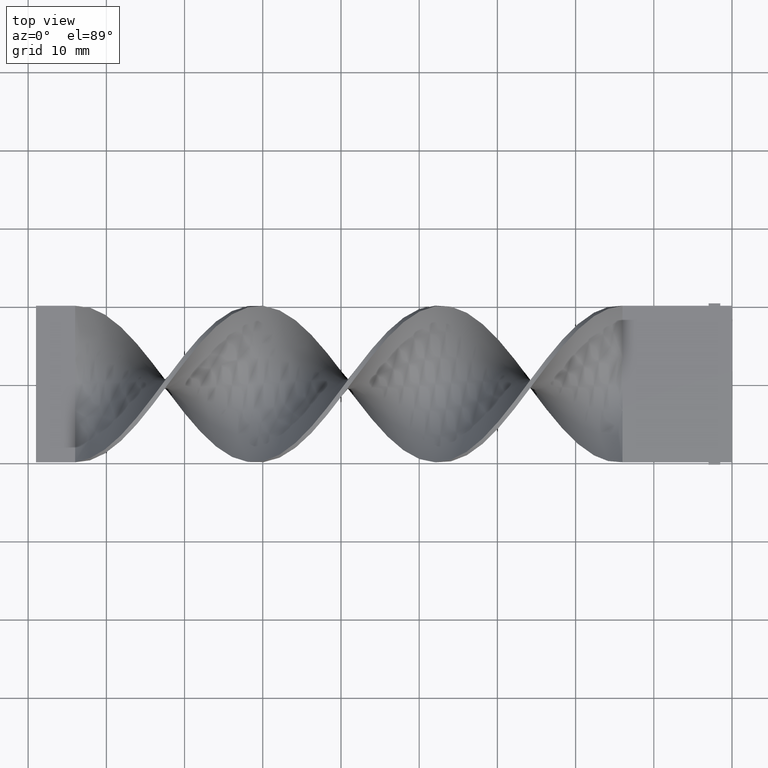
[diagram: clean part render]
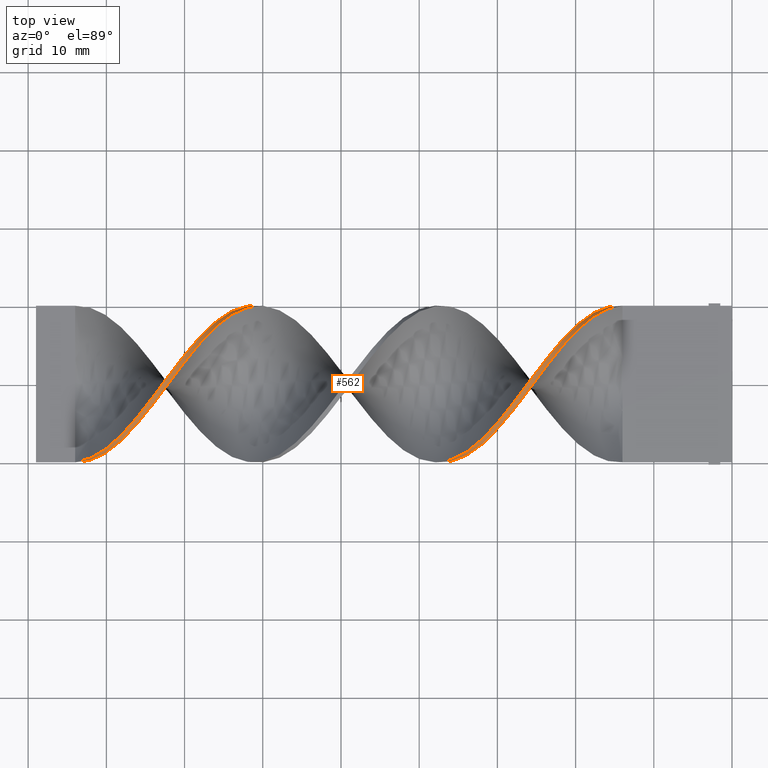
[diagram: same view with one face highlighted and labeled with its STEP entity id]
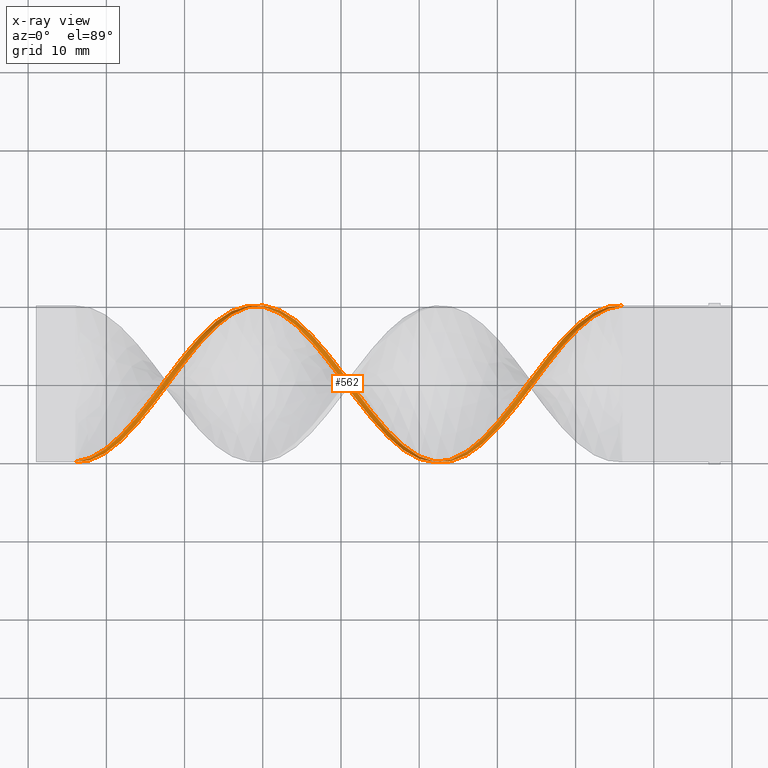
[diagram: x-ray of the same camera — body ghosted, the highlighted face saturated]
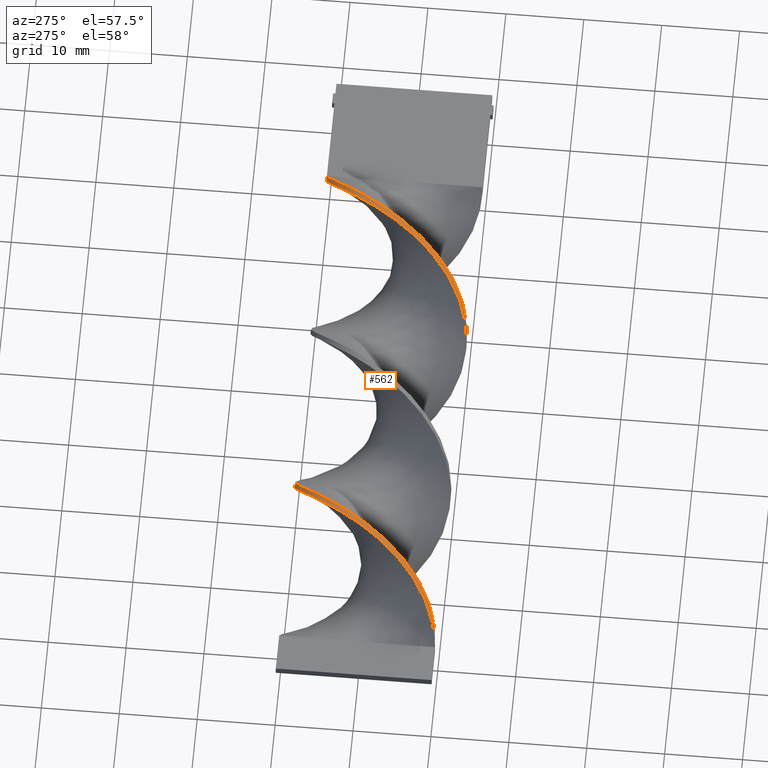
[diagram: same view with one face highlighted and labeled with its STEP entity id]
A machine part, top view. The second image highlights one B-rep face of the part: STEP entity #562.
The next image is the same camera in x-ray: the body ghosted, the highlighted face saturated — about 2% of this face is hidden behind the body in this view.
A second angle (auxiliary view) of the same face is appended — the face is thin or edge-on in the first view.
In plain terms, the highlighted face is a freeform B-spline surface patch.
Its self-contained STEP definition (entity closure, byte-faithful):
#3 = CARTESIAN_POINT ( 'NONE',  ( -52.58974358974359120, 4.235384428724042749, -9.153662347191259485 ) ) ;
#4 = CARTESIAN_POINT ( 'NONE',  ( -66.05128205128204399, 7.816668810831408187, 6.256971208322401168 ) ) ;
#8 = CARTESIAN_POINT ( 'NONE',  ( -23.87179487179487580, 2.899770140771673166, 9.660194033048927764 ) ) ;
#11 = CARTESIAN_POINT ( 'NONE',  ( -62.46153846153845990, 9.589760342116738556, 2.878627551588603062 ) ) ;
#14 = LINE ( 'NONE', #527, #401 ) ;
#17 = CARTESIAN_POINT ( 'NONE',  ( -46.30769230769230660, -3.078540749082653072, -9.527464870375414563 ) ) ;
#21 = CARTESIAN_POINT ( 'NONE',  ( -39.12820512820512420, -9.829076006404301680, -1.907685734162548385 ) ) ;
#25 = CARTESIAN_POINT ( 'NONE',  ( -68.74358974358973740, 4.235384428724050743, 9.153662347191257709 ) ) ;
#32 = CARTESIAN_POINT ( 'NONE',  ( -66.94871794871794179, 6.302926640005411585, 7.874079717413027701 ) ) ;
#37 = CARTESIAN_POINT ( 'NONE',  ( -57.07692307692307310, 8.622198670510210050, -5.089959733264296737 ) ) ;
#42 = CARTESIAN_POINT ( 'NONE',  ( -70.53846153846153300, 1.921697069441247852, 9.901267393559574970 ) ) ;
#47 = CARTESIAN_POINT ( 'NONE',  ( -82.20512820512820440, -9.589760342116740333, 2.878627551588606615 ) ) ;
#51 = CARTESIAN_POINT ( 'NONE',  ( -54.38461538461538680, 6.302926640005402703, -7.874079717413032142 ) ) ;
#56 = CARTESIAN_POINT ( 'NONE',  ( -55.28205128205128460, 7.153546152590608997, -7.005481956493506246 ) ) ;
#59 = CARTESIAN_POINT ( 'NONE',  ( -58.87179487179486870, 9.589760342116736780, -2.878627551588612388 ) ) ;
#63 = CARTESIAN_POINT ( 'NONE',  ( -19.38461538461538325, 7.153546152590613438, 7.005481956493501805 ) ) ;
#67 = CARTESIAN_POINT ( 'NONE',  ( -57.97435897435897090, 9.240231675844613690, -4.043035270954606020 ) ) ;
#73 = CARTESIAN_POINT ( 'NONE',  ( -32.84615384615384670, -8.576402663910499768, 5.307855779119662998 ) ) ;
#76 = CARTESIAN_POINT ( 'NONE',  ( -47.20512820512820440, -2.899770140771674942, -9.660194033048927764 ) ) ;
#82 = CARTESIAN_POINT ( 'NONE',  ( -47.20512820512820440, -1.921697069441249628, -9.901267393559574970 ) ) ;
#85 = CARTESIAN_POINT ( 'NONE',  ( -37.33333333333332860, -10.00000000000000178, 0.5000000000000012212 ) ) ;
#93 = CARTESIAN_POINT ( 'NONE',  ( -81.30769230769233502, -9.240231675844617243, 4.043035270954605132 ) ) ;
#99 = CARTESIAN_POINT ( 'NONE',  ( -65.15384615384614619, 8.004165665175815292, 6.136884195573979461 ) ) ;
#109 = CARTESIAN_POINT ( 'NONE',  ( -40.92307692307691980, -8.622198670510215379, -5.089959733264289632 ) ) ;
#114 = CARTESIAN_POINT ( 'NONE',  ( -13.99999999999999822, 9.999999999999998224, 0.5000000000000000000 ) ) ;
#116 = CARTESIAN_POINT ( 'NONE',  ( -53.48717948717948900, 6.092139400258383297, -7.945806285570988337 ) ) ;
#120 = CARTESIAN_POINT ( 'NONE',  ( -70.53846153846153300, 2.899770140771673166, 9.660194033048927764 ) ) ;
#126 = CARTESIAN_POINT ( 'NONE',  ( -79.51282051282051100, -8.004165665175817068, 6.136884195573980350 ) ) ;
#133 = CARTESIAN_POINT ( 'NONE',  ( -16.69230769230769340, 9.597441021197466782, 3.101151636102497555 ) ) ;
#141 = CARTESIAN_POINT ( 'NONE',  ( -40.92307692307691980, -8.622198670510215379, -5.089959733264289632 ) ) ;
#143 = CARTESIAN_POINT ( 'NONE',  ( -30.15384615384615330, -5.269155534364729832, 8.513871032302143149 ) ) ;
#148 = CARTESIAN_POINT ( 'NONE',  ( -66.05128205128204399, 7.153546152590613438, 7.005481956493501805 ) ) ;
#153 = CARTESIAN_POINT ( 'NONE',  ( -35.53846153846153300, -9.589760342116740333, 2.878627551588606615 ) ) ;
#157 = CARTESIAN_POINT ( 'NONE',  ( -23.87179487179487580, 1.921697069441247852, 9.901267393559574970 ) ) ;
#161 = CARTESIAN_POINT ( 'NONE',  ( -57.97435897435897090, 9.240231675844611914, -4.043035270954605132 ) ) ;
#165 = CARTESIAN_POINT ( 'NONE',  ( -58.87179487179486870, 9.829076006404296351, -1.907685734162560820 ) ) ;
#170 = CARTESIAN_POINT ( 'NONE',  ( -17.58974358974358765, 8.622198670510211826, 5.089959733264290520 ) ) ;
#174 = CARTESIAN_POINT ( 'NONE',  ( -49.89743589743589069, 1.701721239602248970, -9.866820400852880368 ) ) ;
#181 = CARTESIAN_POINT ( 'NONE',  ( -15.79487179487179205, 9.589760342116738556, 2.878627551588603062 ) ) ;
#185 = CARTESIAN_POINT ( 'NONE',  ( -56.17948717948717530, 8.004165665175813515, -6.136884195573982126 ) ) ;
#189 = CARTESIAN_POINT ( 'NONE',  ( -13.99999999999999822, 9.999999999999998224, 0.5000000000000000000 ) ) ;
#192 = CARTESIAN_POINT ( 'NONE',  ( -35.53846153846153300, -9.589760342116740333, 2.878627551588606615 ) ) ;
#196 = CARTESIAN_POINT ( 'NONE',  ( -72.33333333333332860, 0.5036723384328408715, 10.07344676865682942 ) ) ;
#200 = CARTESIAN_POINT ( 'NONE',  ( -84.00000000000000000, -10.00000000000000178, -0.4999999999999988343 ) ) ;
#206 = CARTESIAN_POINT ( 'NONE',  ( -80.41025641025640880, -9.086921842553984163, 4.204503707611081609 ) ) ;
#208 = VERTEX_POINT ( 'NONE', #535 ) ;
#209 = CARTESIAN_POINT ( 'NONE',  ( -42.71794871794872250, -7.816668810831410852, -6.256971208322399391 ) ) ;
#214 = CARTESIAN_POINT ( 'NONE',  ( -83.10256410256410220, -10.06071099161113480, 0.7142198322226099849 ) ) ;
#223 = CARTESIAN_POINT ( 'NONE',  ( -40.02564102564102200, -9.240231675844619019, -4.043035270954598914 ) ) ;
#226 = CARTESIAN_POINT ( 'NONE',  ( -67.84615384615385381, 6.092139400258386850, 7.945806285570984784 ) ) ;
#239 = CARTESIAN_POINT ( 'NONE',  ( -54.38461538461538680, 7.056934957752313053, -7.206086637525145555 ) ) ;
#243 = CARTESIAN_POINT ( 'NONE',  ( -84.00000000000000000, -10.00000000000000178, 0.5000000000000012212 ) ) ;
#250 = CARTESIAN_POINT ( 'NONE',  ( -76.82051282051281760, -5.269155534364729832, 8.513871032302143149 ) ) ;
#251 = EDGE_CURVE ( 'NONE', #1038, #661, #14, .T. ) ;
#267 = CARTESIAN_POINT ( 'NONE',  ( -29.25641025641025905, -5.127343842764454429, 8.685525933616832006 ) ) ;
#270 = CARTESIAN_POINT ( 'NONE',  ( -48.10256410256410220, -1.701721239602264069, -9.866820400852876816 ) ) ;
#274 = CARTESIAN_POINT ( 'NONE',  ( -33.74358974358974450, -9.086921842553984163, 4.204503707611081609 ) ) ;
#276 = CARTESIAN_POINT ( 'NONE',  ( -31.05128205128205465, -6.302926640005408920, 7.874079717413029478 ) ) ;
#279 = CARTESIAN_POINT ( 'NONE',  ( -40.02564102564102200, -9.240231675844620796, -4.043035270954598914 ) ) ;
#288 = CARTESIAN_POINT ( 'NONE',  ( -51.69230769230769340, 4.013556991768062687, -9.172859983332880773 ) ) ;
#291 = CARTESIAN_POINT ( 'NONE',  ( -66.05128205128204399, 7.816668810831408187, 6.256971208322401168 ) ) ;
#295 = CARTESIAN_POINT ( 'NONE',  ( -21.17948717948717885, 5.269155534364730720, 8.513871032302141373 ) ) ;
#300 = CARTESIAN_POINT ( 'NONE',  ( -78.61538461538461320, -7.153546152590612550, 7.005481956493504470 ) ) ;
#303 = CARTESIAN_POINT ( 'NONE',  ( -30.15384615384615330, -5.269155534364729832, 8.513871032302143149 ) ) ;
#309 = CARTESIAN_POINT ( 'NONE',  ( -56.17948717948717530, 8.004165665175813515, -6.136884195573983014 ) ) ;
#312 = CARTESIAN_POINT ( 'NONE',  ( -25.66666666666666785, 0.5036723384328407604, 10.07344676865682764 ) ) ;
#316 = EDGE_CURVE ( 'NONE', #661, #590, #321, .T. ) ;
#317 = CARTESIAN_POINT ( 'NONE',  ( -75.92307692307691980, -4.235384428724050743, 9.153662347191257709 ) ) ;
#320 = CARTESIAN_POINT ( 'NONE',  ( -24.76923076923076650, 1.701721239602258073, 9.866820400852878592 ) ) ;
#321 =( BOUNDED_CURVE ( )  B_SPLINE_CURVE ( 2, ( #645, #508, #1149, #133, #1500, #1512, #1252, #1127, #1004, #639, #893, #8, #782, #513, #1027, #1282, #1526, #521, #143, #276, #1008, #1380, #391, #1020, #153, #774, #651, #1274, #21, #1517, #1505, #404, #886, #1387, #1392, #1141, #396, #634, #270, #767, #900, #658, #1122, #3, #925, #411, #56, #309, #37, #161, #1054, #934, #789, #560, #1317, #1158, #1432, #1543, #291, #1552, #421, #943, #1176, #579, #809, #196, #1071, #543, #1423, #317, #816, #1192, #300, #676, #431, #1570, #47, #1309, #449 ),
 .UNSPECIFIED., .F., .T. ) 
 B_SPLINE_CURVE_WITH_KNOTS ( ( 3, 2, 2, 2, 2, 2, 2, 2, 2, 2, 2, 2, 2, 2, 2, 2, 2, 2, 2, 2, 2, 2, 2, 2, 2, 2, 2, 2, 2, 2, 2, 2, 2, 2, 2, 2, 2, 2, 2, 3 ),
 ( 0.000000000000000000, 0.01923076923076923184, 0.03846153846153846367, 0.05769230769230768857, 0.07692307692307692735, 0.09615384615384615918, 0.1153846153846153771, 0.1346153846153846090, 0.1538461538461538547, 0.1730769230769230449, 0.1923076923076923184, 0.2115384615384615363, 0.2307692307692307543, 0.2500000000000000000, 0.2692307692307692180, 0.2884615384615384359, 0.3076923076923077094, 0.3269230769230769273, 0.3461538461538460898, 0.3653846153846153633, 0.3846153846153846367, 0.4038461538461539102, 0.4230769230769230727, 0.4423076923076922906, 0.4615384615384615086, 0.4807692307692307820, 0.5000000000000000000, 0.5192307692307692735, 0.5384615384615384359, 0.5576923076923077094, 0.5769230769230768718, 0.5961538461538461453, 0.6153846153846154188, 0.6346153846153845812, 0.6538461538461538547, 0.6730769230769230171, 0.6923076923076921796, 0.7115384615384615641, 0.7307692307692307265, 0.7500000000000000000 ),
 .UNSPECIFIED. ) 
 CURVE ( )  GEOMETRIC_REPRESENTATION_ITEM ( )  RATIONAL_B_SPLINE_CURVE ( ( 1.000000000000000000, 0.9927088740980539727, 1.000000000000000000, 0.9927088740980539727, 1.000000000000000000, 0.9927088740980539727, 1.000000000000000000, 0.9927088740980539727, 1.000000000000000000, 0.9927088740980539727, 1.000000000000000000, 0.9927088740980539727, 1.000000000000000000, 0.9927088740980539727, 1.000000000000000000, 0.9927088740980539727, 1.000000000000000000, 0.9927088740980539727, 1.000000000000000000, 0.9927088740980539727, 1.000000000000000000, 0.9927088740980539727, 1.000000000000000000, 0.9927088740980539727, 1.000000000000000000, 0.9927088740980539727, 1.000000000000000000, 0.9927088740980539727, 1.000000000000000000, 0.9927088740980539727, 1.000000000000000000, 0.9927088740980539727, 1.000000000000000000, 0.9927088740980539727, 1.000000000000000000, 0.9927088740980539727, 1.000000000000000000, 0.9927088740980539727, 1.000000000000000000, 0.9927088740980539727, 1.000000000000000000, 0.9927088740980539727, 1.000000000000000000, 0.9927088740980539727, 1.000000000000000000, 0.9927088740980539727, 1.000000000000000000, 0.9927088740980539727, 1.000000000000000000, 0.9927088740980539727, 1.000000000000000000, 0.9927088740980539727, 1.000000000000000000, 0.9927088740980539727, 1.000000000000000000, 0.9927088740980539727, 1.000000000000000000, 0.9927088740980539727, 1.000000000000000000, 0.9927088740980539727, 1.000000000000000000, 0.9927088740980539727, 1.000000000000000000, 0.9927088740980539727, 1.000000000000000000, 0.9927088740980539727, 1.000000000000000000, 0.9927088740980539727, 1.000000000000000000, 0.9927088740980539727, 1.000000000000000000, 0.9927088740980539727, 1.000000000000000000, 0.9927088740980539727, 1.000000000000000000, 0.9927088740980539727, 1.000000000000000000, 0.9927088740980539727, 1.000000000000000000 ) ) 
 REPRESENTATION_ITEM ( '' )  );
#327 = CARTESIAN_POINT ( 'NONE',  ( -36.43589743589743790, -10.06071099161113480, 0.7142198322226099849 ) ) ;
#328 = EDGE_CURVE ( 'NONE', #1038, #208, #1153, .T. ) ;
#332 = CARTESIAN_POINT ( 'NONE',  ( -20.28205128205128460, 7.056934957752320159, 7.206086637525141114 ) ) ;
#337 = CARTESIAN_POINT ( 'NONE',  ( -64.25641025641024839, 8.622198670510211826, 5.089959733264290520 ) ) ;
#340 = CARTESIAN_POINT ( 'NONE',  ( -76.82051282051281760, -6.092139400258385962, 7.945806285570986560 ) ) ;
#346 = CARTESIAN_POINT ( 'NONE',  ( -50.79487179487178850, 2.899770140771668281, -9.660194033048929541 ) ) ;
#349 = CARTESIAN_POINT ( 'NONE',  ( -78.61538461538461320, -7.153546152590612550, 7.005481956493504470 ) ) ;
#355 = CARTESIAN_POINT ( 'NONE',  ( -75.02564102564102200, -4.013556991768063575, 9.172859983332880773 ) ) ;
#358 = CARTESIAN_POINT ( 'NONE',  ( -83.10256410256410220, -9.939289008388872304, 1.714219832222609874 ) ) ;
#360 = FACE_OUTER_BOUND ( 'NONE', #792, .T. ) ;
#362 = CARTESIAN_POINT ( 'NONE',  ( -79.51282051282051100, -8.576402663910499768, 5.307855779119662998 ) ) ;
#369 = CARTESIAN_POINT ( 'NONE',  ( -76.82051282051281760, -6.092139400258385962, 7.945806285570986560 ) ) ;
#378 = DIRECTION ( 'NONE',  ( -0.000000000000000000, -0.000000000000000000, -1.000000000000000000 ) ) ;
#387 = CARTESIAN_POINT ( 'NONE',  ( -43.61538461538461320, -6.302926640005416026, -7.874079717413025925 ) ) ;
#391 = CARTESIAN_POINT ( 'NONE',  ( -33.74358974358974450, -8.622198670510215379, 5.089959733264292296 ) ) ;
#394 = CARTESIAN_POINT ( 'NONE',  ( -60.66666666666666430, 9.999999999999998224, 0.5000000000000000000 ) ) ;
#396 = CARTESIAN_POINT ( 'NONE',  ( -46.30769230769230660, -4.013556991768067128, -9.172859983332880773 ) ) ;
#400 = CARTESIAN_POINT ( 'NONE',  ( -39.12820512820512420, -9.589760342116745662, -2.878627551588600397 ) ) ;
#401 = VECTOR ( 'NONE', #378, 1000.000000000000000 ) ;
#404 = CARTESIAN_POINT ( 'NONE',  ( -41.82051282051281760, -8.576402663910501545, -5.307855779119661221 ) ) ;
#408 = CARTESIAN_POINT ( 'NONE',  ( -73.23076923076924061, -1.701721239602257185, 9.866820400852878592 ) ) ;
#411 = CARTESIAN_POINT ( 'NONE',  ( -54.38461538461538680, 6.302926640005403591, -7.874079717413033030 ) ) ;
#416 = CARTESIAN_POINT ( 'NONE',  ( -22.07692307692308376, 4.235384428724050743, 9.153662347191257709 ) ) ;
#421 = CARTESIAN_POINT ( 'NONE',  ( -67.84615384615385381, 6.092139400258386850, 7.945806285570984784 ) ) ;
#426 = CARTESIAN_POINT ( 'NONE',  ( -78.61538461538461320, -7.816668810831408187, 6.256971208322403832 ) ) ;
#431 = CARTESIAN_POINT ( 'NONE',  ( -80.41025641025640880, -8.622198670510215379, 5.089959733264292296 ) ) ;
#434 = CARTESIAN_POINT ( 'NONE',  ( -60.66666666666666430, 9.999999999999998224, -0.5000000000000000000 ) ) ;
#440 = CARTESIAN_POINT ( 'NONE',  ( -33.74358974358974450, -9.086921842553984163, 4.204503707611081609 ) ) ;
#443 = CARTESIAN_POINT ( 'NONE',  ( -61.56410256410256920, 10.06071099161113125, 0.7142198322226053220 ) ) ;
#449 = CARTESIAN_POINT ( 'NONE',  ( -84.00000000000000000, -10.00000000000000178, 0.5000000000000012212 ) ) ;
#452 = CARTESIAN_POINT ( 'NONE',  ( -81.30769230769233502, -9.597441021197468558, 3.101151636102500664 ) ) ;
#457 = CARTESIAN_POINT ( 'NONE',  ( -57.97435897435897090, 9.597441021197465005, -3.101151636102501552 ) ) ;
#463 = CARTESIAN_POINT ( 'NONE',  ( -75.92307692307693401, -5.127343842764454429, 8.685525933616832006 ) ) ;
#469 = CARTESIAN_POINT ( 'NONE',  ( -57.07692307692307310, 9.086921842553978834, -4.204503707611086938 ) ) ;
#475 = CARTESIAN_POINT ( 'NONE',  ( -73.23076923076924061, -0.7090123655042029904, 9.987357081108200418 ) ) ;
#481 = CARTESIAN_POINT ( 'NONE',  ( -63.35897435897436480, 9.240231675844613690, 4.043035270954601579 ) ) ;
#489 = CARTESIAN_POINT ( 'NONE',  ( -42.71794871794872250, -7.153546152590616991, -7.005481956493500029 ) ) ;
#492 = CARTESIAN_POINT ( 'NONE',  ( -68.74358974358973740, 5.127343842764454429, 8.685525933616832006 ) ) ;
#494 = CARTESIAN_POINT ( 'NONE',  ( -16.69230769230769695, 9.240231675844615467, 4.043035270954601579 ) ) ;
#496 = CARTESIAN_POINT ( 'NONE',  ( -74.12820512820510999, -2.899770140771674498, 9.660194033048927764 ) ) ;
#508 = CARTESIAN_POINT ( 'NONE',  ( -14.89743589743589602, 10.06071099161113125, 0.7142198322226054330 ) ) ;
#509 = CARTESIAN_POINT ( 'NONE',  ( -71.43589743589743080, 1.701721239602258073, 9.866820400852878592 ) ) ;
#513 = CARTESIAN_POINT ( 'NONE',  ( -25.66666666666666785, 0.5036723384328408715, 10.07344676865682942 ) ) ;
#518 = CARTESIAN_POINT ( 'NONE',  ( -31.94871794871794535, -7.816668810831408187, 6.256971208322403832 ) ) ;
#521 = CARTESIAN_POINT ( 'NONE',  ( -29.25641025641025905, -4.235384428724050743, 9.153662347191257709 ) ) ;
#524 = CARTESIAN_POINT ( 'NONE',  ( -57.07692307692307310, 9.086921842553978834, -4.204503707611086938 ) ) ;
#527 = CARTESIAN_POINT ( 'NONE',  ( -13.99999999999999822, 9.999999999999998224, 0.5000000000000000000 ) ) ;
#531 = CARTESIAN_POINT ( 'NONE',  ( -31.05128205128205821, -7.056934957752318383, 7.206086637525142891 ) ) ;
#535 = CARTESIAN_POINT ( 'NONE',  ( -84.00000000000000000, -10.00000000000000178, -0.4999999999999988343 ) ) ;
#538 = CARTESIAN_POINT ( 'NONE',  ( -69.64102564102564941, 3.078540749082649519, 9.527464870375414563 ) ) ;
#543 = CARTESIAN_POINT ( 'NONE',  ( -74.12820512820510999, -1.921697069441249184, 9.901267393559574970 ) ) ;
#547 = CARTESIAN_POINT ( 'NONE',  ( -20.28205128205128460, 6.302926640005411585, 7.874079717413027701 ) ) ;
#552 = CARTESIAN_POINT ( 'NONE',  ( -26.56410256410256210, -1.701721239602257185, 9.866820400852878592 ) ) ;
#556 = CARTESIAN_POINT ( 'NONE',  ( -33.74358974358974450, -8.622198670510215379, 5.089959733264292296 ) ) ;
#560 = CARTESIAN_POINT ( 'NONE',  ( -61.56410256410256920, 10.06071099161113125, 0.7142198322226054330 ) ) ;
#562 = ADVANCED_FACE ( 'NONE', ( #360 ), #950, .T. ) ;
#564 = CARTESIAN_POINT ( 'NONE',  ( -38.23076923076922640, -10.06071099161113480, -0.7142198322226029905 ) ) ;
#570 = CARTESIAN_POINT ( 'NONE',  ( -24.76923076923076650, 0.7090123655042038786, 9.987357081108200418 ) ) ;
#573 = CARTESIAN_POINT ( 'NONE',  ( -27.46153846153846345, -1.921697069441248962, 9.901267393559574970 ) ) ;
#579 = CARTESIAN_POINT ( 'NONE',  ( -70.53846153846153300, 2.899770140771673166, 9.660194033048927764 ) ) ;
#582 = CARTESIAN_POINT ( 'NONE',  ( -49.89743589743589069, 0.7090123655041949968, -9.987357081108202195 ) ) ;
#588 = CARTESIAN_POINT ( 'NONE',  ( -60.66666666666666430, 9.999999999999998224, 0.5000000000000000000 ) ) ;
#590 = VERTEX_POINT ( 'NONE', #1614 ) ;
#591 = CARTESIAN_POINT ( 'NONE',  ( -31.94871794871794535, -7.153546152590612550, 7.005481956493504470 ) ) ;
#601 = CARTESIAN_POINT ( 'NONE',  ( -65.15384615384614619, 8.576402663910497992, 5.307855779119662110 ) ) ;
#607 = CARTESIAN_POINT ( 'NONE',  ( -62.46153846153845990, 9.589760342116738556, 2.878627551588603062 ) ) ;
#615 = CARTESIAN_POINT ( 'NONE',  ( -46.30769230769230660, -3.078540749082653072, -9.527464870375414563 ) ) ;
#621 = CARTESIAN_POINT ( 'NONE',  ( -14.89743589743589602, 9.939289008388868751, 1.714219832222605433 ) ) ;
#622 = CARTESIAN_POINT ( 'NONE',  ( -68.74358974358973740, 4.235384428724049855, 9.153662347191257709 ) ) ;
#625 = B_SPLINE_CURVE_WITH_KNOTS ( 'NONE', 3,
 ( #835, #784, #1284, #1328 ),
 .UNSPECIFIED., .F., .F.,
 ( 4, 4 ),
 ( 0.000000000000000000, 1.000000000000000000 ),
 .UNSPECIFIED. ) ;
#627 = CARTESIAN_POINT ( 'NONE',  ( -64.25641025641024839, 9.086921842553980611, 4.204503707611079832 ) ) ;
#634 = CARTESIAN_POINT ( 'NONE',  ( -47.20512820512820440, -2.899770140771674942, -9.660194033048927764 ) ) ;
#639 = CARTESIAN_POINT ( 'NONE',  ( -22.07692307692308020, 5.127343842764455317, 8.685525933616832006 ) ) ;
#645 = CARTESIAN_POINT ( 'NONE',  ( -13.99999999999999822, 9.999999999999998224, -0.5000000000000000000 ) ) ;
#648 = CARTESIAN_POINT ( 'NONE',  ( -25.66666666666666785, -0.5036723384328420927, 10.07344676865682764 ) ) ;
#651 = CARTESIAN_POINT ( 'NONE',  ( -37.33333333333332860, -10.00000000000000178, 0.5000000000000012212 ) ) ;
#655 = CARTESIAN_POINT ( 'NONE',  ( -22.97435897435897090, 3.078540749082649519, 9.527464870375414563 ) ) ;
#658 = CARTESIAN_POINT ( 'NONE',  ( -50.79487179487178850, 1.921697069441243189, -9.901267393559576746 ) ) ;
#661 = VERTEX_POINT ( 'NONE', #1477 ) ;
#662 = CARTESIAN_POINT ( 'NONE',  ( -65.15384615384614619, 8.004165665175815292, 6.136884195573979461 ) ) ;
#670 = CARTESIAN_POINT ( 'NONE',  ( -42.71794871794872250, -7.153546152590616991, -7.005481956493500029 ) ) ;
#676 = CARTESIAN_POINT ( 'NONE',  ( -79.51282051282051100, -8.004165665175817068, 6.136884195573980350 ) ) ;
#679 = ORIENTED_EDGE ( 'NONE', *, *, #328, .F. ) ;
#680 = CARTESIAN_POINT ( 'NONE',  ( -48.10256410256410220, -1.701721239602264069, -9.866820400852876816 ) ) ;
#686 = CARTESIAN_POINT ( 'NONE',  ( -30.15384615384615330, -6.092139400258385962, 7.945806285570986560 ) ) ;
#689 = CARTESIAN_POINT ( 'NONE',  ( -57.07692307692307310, 8.622198670510210050, -5.089959733264296737 ) ) ;
#697 = CARTESIAN_POINT ( 'NONE',  ( -55.28205128205128460, 7.153546152590608997, -7.005481956493506246 ) ) ;
#701 = CARTESIAN_POINT ( 'NONE',  ( -22.07692307692308020, 4.235384428724049855, 9.153662347191257709 ) ) ;
#704 = CARTESIAN_POINT ( 'NONE',  ( -36.43589743589743790, -9.939289008388872304, 1.714219832222609874 ) ) ;
#710 = CARTESIAN_POINT ( 'NONE',  ( -66.94871794871795601, 6.302926640005410697, 7.874079717413027701 ) ) ;
#713 = CARTESIAN_POINT ( 'NONE',  ( -14.89743589743589602, 10.06071099161113125, 0.7142198322226053220 ) ) ;
#725 = CARTESIAN_POINT ( 'NONE',  ( -13.99999999999999822, 9.999999999999998224, 0.5000000000000000000 ) ) ;
#726 = CARTESIAN_POINT ( 'NONE',  ( -73.23076923076924061, -1.701721239602257185, 9.866820400852878592 ) ) ;
#734 = CARTESIAN_POINT ( 'NONE',  ( -45.41025641025640880, -4.235384428724056960, -9.153662347191254156 ) ) ;
#743 = CARTESIAN_POINT ( 'NONE',  ( -66.05128205128204399, 7.153546152590613438, 7.005481956493501805 ) ) ;
#746 = CARTESIAN_POINT ( 'NONE',  ( -82.20512820512820440, -9.589760342116740333, 2.878627551588606615 ) ) ;
#765 = CARTESIAN_POINT ( 'NONE',  ( -67.84615384615385381, 5.269155534364730720, 8.513871032302141373 ) ) ;
#767 = CARTESIAN_POINT ( 'NONE',  ( -49.00000000000000000, -0.5036723384328445352, -10.07344676865682942 ) ) ;
#771 = CARTESIAN_POINT ( 'NONE',  ( -34.64102564102564230, -9.597441021197468558, 3.101151636102500664 ) ) ;
#774 = CARTESIAN_POINT ( 'NONE',  ( -36.43589743589743790, -9.939289008388872304, 1.714219832222609874 ) ) ;
#778 = ORIENTED_EDGE ( 'NONE', *, *, #316, .T. ) ;
#779 = CARTESIAN_POINT ( 'NONE',  ( -44.51282051282051100, -5.269155534364732496, -8.513871032302141373 ) ) ;
#782 = CARTESIAN_POINT ( 'NONE',  ( -24.76923076923076650, 1.701721239602258073, 9.866820400852878592 ) ) ;
#784 = CARTESIAN_POINT ( 'NONE',  ( -84.00000000000000000, -10.00000000000000178, -0.1666666666666654917 ) ) ;
#786 = CARTESIAN_POINT ( 'NONE',  ( -24.76923076923076650, 0.7090123655042038786, 9.987357081108200418 ) ) ;
#789 = CARTESIAN_POINT ( 'NONE',  ( -60.66666666666666430, 9.999999999999998224, -0.5000000000000000000 ) ) ;
#792 = EDGE_LOOP ( 'NONE', ( #1547, #778, #1170, #679 ) ) ;
#793 = CARTESIAN_POINT ( 'NONE',  ( -27.46153846153846345, -2.899770140771674498, 9.660194033048927764 ) ) ;
#799 = CARTESIAN_POINT ( 'NONE',  ( -20.28205128205128460, 6.302926640005410697, 7.874079717413027701 ) ) ;
#802 = CARTESIAN_POINT ( 'NONE',  ( -31.05128205128205821, -6.302926640005408920, 7.874079717413028590 ) ) ;
#809 = CARTESIAN_POINT ( 'NONE',  ( -71.43589743589743080, 1.701721239602258073, 9.866820400852878592 ) ) ;
#812 = CARTESIAN_POINT ( 'NONE',  ( -80.41025641025640880, -9.086921842553984163, 4.204503707611081609 ) ) ;
#816 = CARTESIAN_POINT ( 'NONE',  ( -76.82051282051281760, -5.269155534364729832, 8.513871032302143149 ) ) ;
#819 = CARTESIAN_POINT ( 'NONE',  ( -26.56410256410256210, -0.7090123655042029904, 9.987357081108200418 ) ) ;
#825 = CARTESIAN_POINT ( 'NONE',  ( -37.33333333333332860, -10.00000000000000178, -0.4999999999999988343 ) ) ;
#830 = CARTESIAN_POINT ( 'NONE',  ( -41.82051282051281760, -8.576402663910501545, -5.307855779119661221 ) ) ;
#835 = CARTESIAN_POINT ( 'NONE',  ( -84.00000000000000000, -10.00000000000000178, -0.4999999999999988343 ) ) ;
#839 = CARTESIAN_POINT ( 'NONE',  ( -40.92307692307691980, -9.086921842553984163, -4.204503707611078944 ) ) ;
#854 = CARTESIAN_POINT ( 'NONE',  ( -43.61538461538461320, -6.302926640005415138, -7.874079717413025925 ) ) ;
#858 = CARTESIAN_POINT ( 'NONE',  ( -80.41025641025640880, -8.622198670510215379, 5.089959733264292296 ) ) ;
#862 = CARTESIAN_POINT ( 'NONE',  ( -41.82051282051281760, -8.004165665175818845, -6.136884195573978573 ) ) ;
#881 = CARTESIAN_POINT ( 'NONE',  ( -75.92307692307693401, -4.235384428724051631, 9.153662347191257709 ) ) ;
#886 = CARTESIAN_POINT ( 'NONE',  ( -42.71794871794872250, -7.816668810831410852, -6.256971208322399391 ) ) ;
#890 = CARTESIAN_POINT ( 'NONE',  ( -53.48717948717948900, 6.092139400258383297, -7.945806285570988337 ) ) ;
#893 = CARTESIAN_POINT ( 'NONE',  ( -22.97435897435897090, 4.013556991768064464, 9.172859983332880773 ) ) ;
#897 = CARTESIAN_POINT ( 'NONE',  ( -45.41025641025640880, -4.235384428724057848, -9.153662347191254156 ) ) ;
#900 = CARTESIAN_POINT ( 'NONE',  ( -49.89743589743589069, 0.7090123655041949968, -9.987357081108202195 ) ) ;
#904 = CARTESIAN_POINT ( 'NONE',  ( -47.20512820512820440, -1.921697069441249406, -9.901267393559574970 ) ) ;
#913 = CARTESIAN_POINT ( 'NONE',  ( -54.38461538461538680, 7.056934957752313942, -7.206086637525145555 ) ) ;
#917 = CARTESIAN_POINT ( 'NONE',  ( -14.89743589743589602, 9.939289008388868751, 1.714219832222605433 ) ) ;
#921 = CARTESIAN_POINT ( 'NONE',  ( -75.02564102564102200, -4.013556991768063575, 9.172859983332880773 ) ) ;
#925 = CARTESIAN_POINT ( 'NONE',  ( -53.48717948717948900, 5.269155534364727167, -8.513871032302144926 ) ) ;
#929 = CARTESIAN_POINT ( 'NONE',  ( -79.51282051282051100, -8.576402663910499768, 5.307855779119662998 ) ) ;
#934 = CARTESIAN_POINT ( 'NONE',  ( -59.76923076923076650, 9.939289008388868751, -1.714219832222610984 ) ) ;
#937 = CARTESIAN_POINT ( 'NONE',  ( -46.30769230769230660, -4.013556991768067128, -9.172859983332880773 ) ) ;
#943 = CARTESIAN_POINT ( 'NONE',  ( -68.74358974358973740, 5.127343842764455317, 8.685525933616832006 ) ) ;
#946 = CARTESIAN_POINT ( 'NONE',  ( -16.69230769230769695, 9.597441021197466782, 3.101151636102497555 ) ) ;
#950 =( BOUNDED_SURFACE ( )  B_SPLINE_SURFACE ( 1, 2, ( 
 ( #114, #621, #1610, #494, #993, #1419, #1138, #547, #295, #416, #655, #157, #786, #648, #1039, #793, #1402, #267, #1509, #531, #518, #1016, #274, #771, #1261, #1024, #1011, #1130, #400, #279, #141, #1521, #670, #387, #779, #897, #17, #904, #1396, #1295, #174, #1412, #288, #1146, #890, #913, #1152, #1277, #524, #1286, #165, #1515, #394, #1162, #11, #1390, #1268, #662, #148, #32, #765, #25, #538, #42, #1031, #1529, #408, #1538, #921, #463, #340, #1188, #426, #929, #812, #452, #1548, #1451, #200 ),
 ( #1461, #713, #1050, #946, #1341, #1333, #1427, #332, #1444, #1321, #1304, #955, #320, #312, #819, #573, #1066, #1058, #303, #802, #591, #1312, #556, #1195, #192, #704, #85, #564, #1565, #1180, #839, #830, #209, #965, #1074, #1206, #937, #76, #680, #1435, #582, #1083, #1573, #1582, #1171, #51, #697, #185, #689, #67, #59, #1557, #434, #443, #1495, #1241, #627, #601, #4, #1598, #226, #492, #1367, #120, #509, #1223, #475, #1115, #1471, #881, #250, #1502, #349, #126, #858, #93, #746, #358, #243 ) ),
 .UNSPECIFIED., .F., .F., .F. ) 
 B_SPLINE_SURFACE_WITH_KNOTS ( ( 2, 2 ),
 ( 3, 2, 2, 2, 2, 2, 2, 2, 2, 2, 2, 2, 2, 2, 2, 2, 2, 2, 2, 2, 2, 2, 2, 2, 2, 2, 2, 2, 2, 2, 2, 2, 2, 2, 2, 2, 2, 2, 2, 3 ),
 ( 0.000000000000000000, 1.000000000000000000 ),
 ( 0.000000000000000000, 0.01923076923076923184, 0.03846153846153846367, 0.05769230769230769551, 0.07692307692307692735, 0.09615384615384615918, 0.1153846153846153910, 0.1346153846153846090, 0.1538461538461538547, 0.1730769230769230727, 0.1923076923076923184, 0.2115384615384615363, 0.2307692307692307820, 0.2500000000000000000, 0.2692307692307692180, 0.2884615384615384359, 0.3076923076923077094, 0.3269230769230769273, 0.3461538461538461453, 0.3653846153846153633, 0.3846153846153846367, 0.4038461538461538547, 0.4230769230769230727, 0.4423076923076922906, 0.4615384615384615641, 0.4807692307692307820, 0.5000000000000000000, 0.5192307692307692735, 0.5384615384615384359, 0.5576923076923077094, 0.5769230769230768718, 0.5961538461538461453, 0.6153846153846154188, 0.6346153846153845812, 0.6538461538461538547, 0.6730769230769231282, 0.6923076923076922906, 0.7115384615384615641, 0.7307692307692307265, 0.7500000000000000000 ),
 .UNSPECIFIED. ) 
 GEOMETRIC_REPRESENTATION_ITEM ( )  RATIONAL_B_SPLINE_SURFACE ( (
 ( 1.000000000000000000, 0.9927088740980539727, 1.000000000000000000, 0.9927088740980539727, 1.000000000000000000, 0.9927088740980539727, 1.000000000000000000, 0.9927088740980539727, 1.000000000000000000, 0.9927088740980539727, 1.000000000000000000, 0.9927088740980539727, 1.000000000000000000, 0.9927088740980539727, 1.000000000000000000, 0.9927088740980539727, 1.000000000000000000, 0.9927088740980539727, 1.000000000000000000, 0.9927088740980539727, 1.000000000000000000, 0.9927088740980539727, 1.000000000000000000, 0.9927088740980539727, 1.000000000000000000, 0.9927088740980539727, 1.000000000000000000, 0.9927088740980539727, 1.000000000000000000, 0.9927088740980539727, 1.000000000000000000, 0.9927088740980539727, 1.000000000000000000, 0.9927088740980539727, 1.000000000000000000, 0.9927088740980539727, 1.000000000000000000, 0.9927088740980539727, 1.000000000000000000, 0.9927088740980539727, 1.000000000000000000, 0.9927088740980539727, 1.000000000000000000, 0.9927088740980539727, 1.000000000000000000, 0.9927088740980539727, 1.000000000000000000, 0.9927088740980539727, 1.000000000000000000, 0.9927088740980539727, 1.000000000000000000, 0.9927088740980539727, 1.000000000000000000, 0.9927088740980539727, 1.000000000000000000, 0.9927088740980539727, 1.000000000000000000, 0.9927088740980539727, 1.000000000000000000, 0.9927088740980539727, 1.000000000000000000, 0.9927088740980539727, 1.000000000000000000, 0.9927088740980539727, 1.000000000000000000, 0.9927088740980539727, 1.000000000000000000, 0.9927088740980539727, 1.000000000000000000, 0.9927088740980539727, 1.000000000000000000, 0.9927088740980539727, 1.000000000000000000, 0.9927088740980539727, 1.000000000000000000, 0.9927088740980539727, 1.000000000000000000, 0.9927088740980539727, 1.000000000000000000),
 ( 1.000000000000000000, 0.9927088740980539727, 1.000000000000000000, 0.9927088740980539727, 1.000000000000000000, 0.9927088740980539727, 1.000000000000000000, 0.9927088740980539727, 1.000000000000000000, 0.9927088740980539727, 1.000000000000000000, 0.9927088740980539727, 1.000000000000000000, 0.9927088740980539727, 1.000000000000000000, 0.9927088740980539727, 1.000000000000000000, 0.9927088740980539727, 1.000000000000000000, 0.9927088740980539727, 1.000000000000000000, 0.9927088740980539727, 1.000000000000000000, 0.9927088740980539727, 1.000000000000000000, 0.9927088740980539727, 1.000000000000000000, 0.9927088740980539727, 1.000000000000000000, 0.9927088740980539727, 1.000000000000000000, 0.9927088740980539727, 1.000000000000000000, 0.9927088740980539727, 1.000000000000000000, 0.9927088740980539727, 1.000000000000000000, 0.9927088740980539727, 1.000000000000000000, 0.9927088740980539727, 1.000000000000000000, 0.9927088740980539727, 1.000000000000000000, 0.9927088740980539727, 1.000000000000000000, 0.9927088740980539727, 1.000000000000000000, 0.9927088740980539727, 1.000000000000000000, 0.9927088740980539727, 1.000000000000000000, 0.9927088740980539727, 1.000000000000000000, 0.9927088740980539727, 1.000000000000000000, 0.9927088740980539727, 1.000000000000000000, 0.9927088740980539727, 1.000000000000000000, 0.9927088740980539727, 1.000000000000000000, 0.9927088740980539727, 1.000000000000000000, 0.9927088740980539727, 1.000000000000000000, 0.9927088740980539727, 1.000000000000000000, 0.9927088740980539727, 1.000000000000000000, 0.9927088740980539727, 1.000000000000000000, 0.9927088740980539727, 1.000000000000000000, 0.9927088740980539727, 1.000000000000000000, 0.9927088740980539727, 1.000000000000000000, 0.9927088740980539727, 1.000000000000000000) ) ) 
 REPRESENTATION_ITEM ( '' )  SURFACE ( )  );
#952 = CARTESIAN_POINT ( 'NONE',  ( -31.05128205128205465, -7.056934957752318383, 7.206086637525142891 ) ) ;
#955 = CARTESIAN_POINT ( 'NONE',  ( -23.87179487179487580, 2.899770140771673166, 9.660194033048927764 ) ) ;
#961 = CARTESIAN_POINT ( 'NONE',  ( -81.30769230769232081, -9.597441021197468558, 3.101151636102500220 ) ) ;
#965 = CARTESIAN_POINT ( 'NONE',  ( -43.61538461538461320, -7.056934957752322823, -7.206086637525138450 ) ) ;
#970 = CARTESIAN_POINT ( 'NONE',  ( -82.20512820512820440, -9.829076006404299903, 1.907685734162555047 ) ) ;
#980 = CARTESIAN_POINT ( 'NONE',  ( -67.84615384615385381, 5.269155534364730720, 8.513871032302141373 ) ) ;
#987 = CARTESIAN_POINT ( 'NONE',  ( -44.51282051282051100, -5.269155534364732496, -8.513871032302141373 ) ) ;
#993 = CARTESIAN_POINT ( 'NONE',  ( -17.58974358974358765, 8.622198670510211826, 5.089959733264290520 ) ) ;
#994 = CARTESIAN_POINT ( 'NONE',  ( -55.28205128205128460, 7.816668810831404635, -6.256971208322405609 ) ) ;
#1004 = CARTESIAN_POINT ( 'NONE',  ( -21.17948717948717885, 6.092139400258386850, 7.945806285570984784 ) ) ;
#1008 = CARTESIAN_POINT ( 'NONE',  ( -31.94871794871794535, -7.153546152590612550, 7.005481956493504470 ) ) ;
#1011 = CARTESIAN_POINT ( 'NONE',  ( -37.33333333333332860, -10.00000000000000178, -0.4999999999999988343 ) ) ;
#1016 = CARTESIAN_POINT ( 'NONE',  ( -32.84615384615384670, -8.576402663910499768, 5.307855779119662998 ) ) ;
#1020 = CARTESIAN_POINT ( 'NONE',  ( -34.64102564102564230, -9.240231675844615467, 4.043035270954604243 ) ) ;
#1024 = CARTESIAN_POINT ( 'NONE',  ( -36.43589743589743790, -10.06071099161113480, 0.7142198322226098739 ) ) ;
#1027 = CARTESIAN_POINT ( 'NONE',  ( -26.56410256410256210, -0.7090123655042029904, 9.987357081108200418 ) ) ;
#1031 = CARTESIAN_POINT ( 'NONE',  ( -71.43589743589743080, 0.7090123655042038786, 9.987357081108200418 ) ) ;
#1034 = CARTESIAN_POINT ( 'NONE',  ( -21.17948717948717885, 5.269155534364730720, 8.513871032302141373 ) ) ;
#1038 = VERTEX_POINT ( 'NONE', #725 ) ;
#1039 = CARTESIAN_POINT ( 'NONE',  ( -26.56410256410256210, -1.701721239602257185, 9.866820400852878592 ) ) ;
#1045 = CARTESIAN_POINT ( 'NONE',  ( -27.46153846153846345, -2.899770140771674498, 9.660194033048927764 ) ) ;
#1050 = CARTESIAN_POINT ( 'NONE',  ( -15.79487179487179205, 9.829076006404298127, 1.907685734162551494 ) ) ;
#1054 = CARTESIAN_POINT ( 'NONE',  ( -58.87179487179486870, 9.589760342116736780, -2.878627551588612388 ) ) ;
#1058 = CARTESIAN_POINT ( 'NONE',  ( -29.25641025641025905, -4.235384428724051631, 9.153662347191257709 ) ) ;
#1063 = CARTESIAN_POINT ( 'NONE',  ( -29.25641025641025905, -5.127343842764455317, 8.685525933616832006 ) ) ;
#1066 = CARTESIAN_POINT ( 'NONE',  ( -28.35897435897435770, -3.078540749082648631, 9.527464870375414563 ) ) ;
#1071 = CARTESIAN_POINT ( 'NONE',  ( -73.23076923076924061, -0.7090123655042029904, 9.987357081108200418 ) ) ;
#1074 = CARTESIAN_POINT ( 'NONE',  ( -44.51282051282051100, -6.092139400258388626, -7.945806285570984784 ) ) ;
#1079 = CARTESIAN_POINT ( 'NONE',  ( -77.71794871794874382, -7.056934957752318383, 7.206086637525142891 ) ) ;
#1083 = CARTESIAN_POINT ( 'NONE',  ( -50.79487179487178850, 1.921697069441242967, -9.901267393559576746 ) ) ;
#1088 = CARTESIAN_POINT ( 'NONE',  ( -49.00000000000000000, 0.5036723384328385400, -10.07344676865682942 ) ) ;
#1099 = CARTESIAN_POINT ( 'NONE',  ( -69.64102564102564941, 3.078540749082649519, 9.527464870375414563 ) ) ;
#1106 = CARTESIAN_POINT ( 'NONE',  ( -56.17948717948717530, 8.576402663910496216, -5.307855779119664774 ) ) ;
#1112 = CARTESIAN_POINT ( 'NONE',  ( -48.10256410256410220, -0.7090123655042099848, -9.987357081108202195 ) ) ;
#1115 = CARTESIAN_POINT ( 'NONE',  ( -74.12820512820512420, -1.921697069441248962, 9.901267393559574970 ) ) ;
#1122 = CARTESIAN_POINT ( 'NONE',  ( -51.69230769230769340, 3.078540749082647299, -9.527464870375414563 ) ) ;
#1127 = CARTESIAN_POINT ( 'NONE',  ( -20.28205128205128460, 7.056934957752320159, 7.206086637525141114 ) ) ;
#1130 = CARTESIAN_POINT ( 'NONE',  ( -38.23076923076922640, -9.939289008388872304, -1.714219832222602991 ) ) ;
#1138 = CARTESIAN_POINT ( 'NONE',  ( -19.38461538461538325, 7.153546152590613438, 7.005481956493501805 ) ) ;
#1141 = CARTESIAN_POINT ( 'NONE',  ( -45.41025641025640880, -5.127343842764459758, -8.685525933616828453 ) ) ;
#1146 = CARTESIAN_POINT ( 'NONE',  ( -52.58974358974358410, 5.127343842764449100, -8.685525933616833782 ) ) ;
#1149 = CARTESIAN_POINT ( 'NONE',  ( -15.79487179487179205, 9.829076006404298127, 1.907685734162551494 ) ) ;
#1152 = CARTESIAN_POINT ( 'NONE',  ( -55.28205128205128460, 7.816668810831404635, -6.256971208322405609 ) ) ;
#1153 =( BOUNDED_CURVE ( )  B_SPLINE_CURVE ( 2, ( #189, #917, #181, #1533, #170, #1184, #63, #799, #1034, #701, #1290, #1415, #570, #1167, #552, #1045, #1300, #1063, #686, #952, #1562, #73, #440, #1441, #1448, #327, #825, #1579, #1203, #223, #109, #862, #489, #854, #987, #734, #615, #82, #1112, #1088, #1338, #346, #1235, #1362, #116, #239, #994, #1106, #469, #457, #1220, #1476, #588, #1330, #607, #481, #337, #99, #743, #710, #980, #622, #1099, #1611, #1604, #1484, #726, #496, #355, #1492, #369, #1079, #1587, #362, #206, #961, #970, #214, #1595 ),
 .UNSPECIFIED., .F., .T. ) 
 B_SPLINE_CURVE_WITH_KNOTS ( ( 3, 2, 2, 2, 2, 2, 2, 2, 2, 2, 2, 2, 2, 2, 2, 2, 2, 2, 2, 2, 2, 2, 2, 2, 2, 2, 2, 2, 2, 2, 2, 2, 2, 2, 2, 2, 2, 2, 2, 3 ),
 ( 0.000000000000000000, 0.01923076923076923184, 0.03846153846153846367, 0.05769230769230768857, 0.07692307692307692735, 0.09615384615384615918, 0.1153846153846153771, 0.1346153846153846090, 0.1538461538461538547, 0.1730769230769230449, 0.1923076923076923184, 0.2115384615384615363, 0.2307692307692307543, 0.2500000000000000000, 0.2692307692307692180, 0.2884615384615384359, 0.3076923076923077094, 0.3269230769230769273, 0.3461538461538460898, 0.3653846153846153633, 0.3846153846153846367, 0.4038461538461539102, 0.4230769230769230727, 0.4423076923076922906, 0.4615384615384615086, 0.4807692307692307820, 0.5000000000000000000, 0.5192307692307692735, 0.5384615384615384359, 0.5576923076923077094, 0.5769230769230768718, 0.5961538461538461453, 0.6153846153846154188, 0.6346153846153845812, 0.6538461538461538547, 0.6730769230769230171, 0.6923076923076921796, 0.7115384615384615641, 0.7307692307692307265, 0.7500000000000000000 ),
 .UNSPECIFIED. ) 
 CURVE ( )  GEOMETRIC_REPRESENTATION_ITEM ( )  RATIONAL_B_SPLINE_CURVE ( ( 1.000000000000000000, 0.9927088740980539727, 1.000000000000000000, 0.9927088740980539727, 1.000000000000000000, 0.9927088740980539727, 1.000000000000000000, 0.9927088740980539727, 1.000000000000000000, 0.9927088740980539727, 1.000000000000000000, 0.9927088740980539727, 1.000000000000000000, 0.9927088740980539727, 1.000000000000000000, 0.9927088740980539727, 1.000000000000000000, 0.9927088740980539727, 1.000000000000000000, 0.9927088740980539727, 1.000000000000000000, 0.9927088740980539727, 1.000000000000000000, 0.9927088740980539727, 1.000000000000000000, 0.9927088740980539727, 1.000000000000000000, 0.9927088740980539727, 1.000000000000000000, 0.9927088740980539727, 1.000000000000000000, 0.9927088740980539727, 1.000000000000000000, 0.9927088740980539727, 1.000000000000000000, 0.9927088740980539727, 1.000000000000000000, 0.9927088740980539727, 1.000000000000000000, 0.9927088740980539727, 1.000000000000000000, 0.9927088740980539727, 1.000000000000000000, 0.9927088740980539727, 1.000000000000000000, 0.9927088740980539727, 1.000000000000000000, 0.9927088740980539727, 1.000000000000000000, 0.9927088740980539727, 1.000000000000000000, 0.9927088740980539727, 1.000000000000000000, 0.9927088740980539727, 1.000000000000000000, 0.9927088740980539727, 1.000000000000000000, 0.9927088740980539727, 1.000000000000000000, 0.9927088740980539727, 1.000000000000000000, 0.9927088740980539727, 1.000000000000000000, 0.9927088740980539727, 1.000000000000000000, 0.9927088740980539727, 1.000000000000000000, 0.9927088740980539727, 1.000000000000000000, 0.9927088740980539727, 1.000000000000000000, 0.9927088740980539727, 1.000000000000000000, 0.9927088740980539727, 1.000000000000000000, 0.9927088740980539727, 1.000000000000000000, 0.9927088740980539727, 1.000000000000000000 ) ) 
 REPRESENTATION_ITEM ( '' )  );
#1158 = CARTESIAN_POINT ( 'NONE',  ( -63.35897435897436480, 9.597441021197466782, 3.101151636102497555 ) ) ;
#1162 = CARTESIAN_POINT ( 'NONE',  ( -61.56410256410256920, 9.939289008388868751, 1.714219832222605433 ) ) ;
#1167 = CARTESIAN_POINT ( 'NONE',  ( -25.66666666666666785, -0.5036723384328420927, 10.07344676865682942 ) ) ;
#1170 = ORIENTED_EDGE ( 'NONE', *, *, #1219, .F. ) ;
#1171 = CARTESIAN_POINT ( 'NONE',  ( -53.48717948717948900, 5.269155534364727167, -8.513871032302144926 ) ) ;
#1176 = CARTESIAN_POINT ( 'NONE',  ( -69.64102564102564941, 4.013556991768064464, 9.172859983332880773 ) ) ;
#1180 = CARTESIAN_POINT ( 'NONE',  ( -40.02564102564102200, -9.597441021197472111, -3.101151636102494003 ) ) ;
#1184 = CARTESIAN_POINT ( 'NONE',  ( -18.48717948717948545, 8.004165665175815292, 6.136884195573979461 ) ) ;
#1188 = CARTESIAN_POINT ( 'NONE',  ( -77.71794871794872961, -7.056934957752318383, 7.206086637525142891 ) ) ;
#1192 = CARTESIAN_POINT ( 'NONE',  ( -77.71794871794874382, -6.302926640005408920, 7.874079717413029478 ) ) ;
#1195 = CARTESIAN_POINT ( 'NONE',  ( -34.64102564102564230, -9.240231675844617243, 4.043035270954605132 ) ) ;
#1203 = CARTESIAN_POINT ( 'NONE',  ( -39.12820512820512420, -9.589760342116745662, -2.878627551588600397 ) ) ;
#1206 = CARTESIAN_POINT ( 'NONE',  ( -45.41025641025640880, -5.127343842764459758, -8.685525933616828453 ) ) ;
#1219 = EDGE_CURVE ( 'NONE', #208, #590, #625, .T. ) ;
#1220 = CARTESIAN_POINT ( 'NONE',  ( -58.87179487179486870, 9.829076006404296351, -1.907685734162560820 ) ) ;
#1223 = CARTESIAN_POINT ( 'NONE',  ( -72.33333333333332860, 0.5036723384328407604, 10.07344676865682764 ) ) ;
#1235 = CARTESIAN_POINT ( 'NONE',  ( -51.69230769230769340, 4.013556991768062687, -9.172859983332880773 ) ) ;
#1241 = CARTESIAN_POINT ( 'NONE',  ( -63.35897435897435770, 9.597441021197466782, 3.101151636102497555 ) ) ;
#1252 = CARTESIAN_POINT ( 'NONE',  ( -19.38461538461538325, 7.816668810831408187, 6.256971208322401168 ) ) ;
#1261 = CARTESIAN_POINT ( 'NONE',  ( -35.53846153846153300, -9.829076006404299903, 1.907685734162555047 ) ) ;
#1268 = CARTESIAN_POINT ( 'NONE',  ( -64.25641025641024839, 8.622198670510211826, 5.089959733264290520 ) ) ;
#1274 = CARTESIAN_POINT ( 'NONE',  ( -38.23076923076922640, -10.06071099161113480, -0.7142198322226029905 ) ) ;
#1277 = CARTESIAN_POINT ( 'NONE',  ( -56.17948717948717530, 8.576402663910496216, -5.307855779119664774 ) ) ;
#1282 = CARTESIAN_POINT ( 'NONE',  ( -27.46153846153846345, -1.921697069441249184, 9.901267393559574970 ) ) ;
#1284 = CARTESIAN_POINT ( 'NONE',  ( -84.00000000000000000, -10.00000000000000178, 0.1666666666666678787 ) ) ;
#1286 = CARTESIAN_POINT ( 'NONE',  ( -57.97435897435897090, 9.597441021197465005, -3.101151636102501996 ) ) ;
#1290 = CARTESIAN_POINT ( 'NONE',  ( -22.97435897435897090, 3.078540749082649519, 9.527464870375414563 ) ) ;
#1295 = CARTESIAN_POINT ( 'NONE',  ( -49.00000000000000711, 0.5036723384328385400, -10.07344676865682764 ) ) ;
#1300 = CARTESIAN_POINT ( 'NONE',  ( -28.35897435897435770, -4.013556991768063575, 9.172859983332880773 ) ) ;
#1304 = CARTESIAN_POINT ( 'NONE',  ( -22.97435897435897090, 4.013556991768064464, 9.172859983332880773 ) ) ;
#1309 = CARTESIAN_POINT ( 'NONE',  ( -83.10256410256410220, -9.939289008388872304, 1.714219832222609874 ) ) ;
#1312 = CARTESIAN_POINT ( 'NONE',  ( -32.84615384615384670, -8.004165665175817068, 6.136884195573980350 ) ) ;
#1317 = CARTESIAN_POINT ( 'NONE',  ( -62.46153846153845990, 9.829076006404298127, 1.907685734162551494 ) ) ;
#1321 = CARTESIAN_POINT ( 'NONE',  ( -22.07692307692308376, 5.127343842764454429, 8.685525933616832006 ) ) ;
#1328 = CARTESIAN_POINT ( 'NONE',  ( -84.00000000000000000, -10.00000000000000178, 0.5000000000000012212 ) ) ;
#1330 = CARTESIAN_POINT ( 'NONE',  ( -61.56410256410256920, 9.939289008388868751, 1.714219832222605433 ) ) ;
#1333 = CARTESIAN_POINT ( 'NONE',  ( -18.48717948717948545, 8.576402663910497992, 5.307855779119662110 ) ) ;
#1338 = CARTESIAN_POINT ( 'NONE',  ( -49.89743589743589069, 1.701721239602248970, -9.866820400852880368 ) ) ;
#1341 = CARTESIAN_POINT ( 'NONE',  ( -17.58974358974358765, 9.086921842553980611, 4.204503707611079832 ) ) ;
#1362 = CARTESIAN_POINT ( 'NONE',  ( -52.58974358974359120, 5.127343842764449100, -8.685525933616833782 ) ) ;
#1367 = CARTESIAN_POINT ( 'NONE',  ( -69.64102564102564941, 4.013556991768064464, 9.172859983332880773 ) ) ;
#1380 = CARTESIAN_POINT ( 'NONE',  ( -32.84615384615384670, -8.004165665175817068, 6.136884195573980350 ) ) ;
#1387 = CARTESIAN_POINT ( 'NONE',  ( -43.61538461538461320, -7.056934957752322823, -7.206086637525138450 ) ) ;
#1390 = CARTESIAN_POINT ( 'NONE',  ( -63.35897435897435770, 9.240231675844615467, 4.043035270954601579 ) ) ;
#1392 = CARTESIAN_POINT ( 'NONE',  ( -44.51282051282051100, -6.092139400258388626, -7.945806285570984784 ) ) ;
#1396 = CARTESIAN_POINT ( 'NONE',  ( -48.10256410256410220, -0.7090123655042099848, -9.987357081108202195 ) ) ;
#1402 = CARTESIAN_POINT ( 'NONE',  ( -28.35897435897435770, -4.013556991768063575, 9.172859983332880773 ) ) ;
#1412 = CARTESIAN_POINT ( 'NONE',  ( -50.79487179487178850, 2.899770140771668725, -9.660194033048929541 ) ) ;
#1415 = CARTESIAN_POINT ( 'NONE',  ( -23.87179487179487580, 1.921697069441247852, 9.901267393559574970 ) ) ;
#1419 = CARTESIAN_POINT ( 'NONE',  ( -18.48717948717948545, 8.004165665175815292, 6.136884195573979461 ) ) ;
#1423 = CARTESIAN_POINT ( 'NONE',  ( -75.02564102564102200, -3.078540749082648631, 9.527464870375414563 ) ) ;
#1427 = CARTESIAN_POINT ( 'NONE',  ( -19.38461538461538325, 7.816668810831408187, 6.256971208322401168 ) ) ;
#1432 = CARTESIAN_POINT ( 'NONE',  ( -64.25641025641024839, 9.086921842553980611, 4.204503707611079832 ) ) ;
#1435 = CARTESIAN_POINT ( 'NONE',  ( -49.00000000000000711, -0.5036723384328444242, -10.07344676865682764 ) ) ;
#1441 = CARTESIAN_POINT ( 'NONE',  ( -34.64102564102564230, -9.597441021197468558, 3.101151636102500220 ) ) ;
#1444 = CARTESIAN_POINT ( 'NONE',  ( -21.17948717948717885, 6.092139400258386850, 7.945806285570984784 ) ) ;
#1448 = CARTESIAN_POINT ( 'NONE',  ( -35.53846153846153300, -9.829076006404299903, 1.907685734162555047 ) ) ;
#1451 = CARTESIAN_POINT ( 'NONE',  ( -83.10256410256410220, -10.06071099161113480, 0.7142198322226098739 ) ) ;
#1461 = CARTESIAN_POINT ( 'NONE',  ( -13.99999999999999822, 9.999999999999998224, -0.5000000000000000000 ) ) ;
#1471 = CARTESIAN_POINT ( 'NONE',  ( -75.02564102564102200, -3.078540749082648631, 9.527464870375414563 ) ) ;
#1476 = CARTESIAN_POINT ( 'NONE',  ( -59.76923076923076650, 10.06071099161113125, -0.7142198322226109841 ) ) ;
#1477 = CARTESIAN_POINT ( 'NONE',  ( -13.99999999999999822, 9.999999999999998224, -0.5000000000000000000 ) ) ;
#1484 = CARTESIAN_POINT ( 'NONE',  ( -72.33333333333332860, -0.5036723384328420927, 10.07344676865682942 ) ) ;
#1492 = CARTESIAN_POINT ( 'NONE',  ( -75.92307692307691980, -5.127343842764455317, 8.685525933616832006 ) ) ;
#1495 = CARTESIAN_POINT ( 'NONE',  ( -62.46153846153845990, 9.829076006404298127, 1.907685734162551494 ) ) ;
#1500 = CARTESIAN_POINT ( 'NONE',  ( -17.58974358974358765, 9.086921842553980611, 4.204503707611079832 ) ) ;
#1502 = CARTESIAN_POINT ( 'NONE',  ( -77.71794871794872961, -6.302926640005408920, 7.874079717413028590 ) ) ;
#1505 = CARTESIAN_POINT ( 'NONE',  ( -40.92307692307691980, -9.086921842553984163, -4.204503707611078944 ) ) ;
#1509 = CARTESIAN_POINT ( 'NONE',  ( -30.15384615384615330, -6.092139400258385962, 7.945806285570986560 ) ) ;
#1512 = CARTESIAN_POINT ( 'NONE',  ( -18.48717948717948545, 8.576402663910497992, 5.307855779119662110 ) ) ;
#1515 = CARTESIAN_POINT ( 'NONE',  ( -59.76923076923077360, 10.06071099161113125, -0.7142198322226109841 ) ) ;
#1517 = CARTESIAN_POINT ( 'NONE',  ( -40.02564102564102200, -9.597441021197472111, -3.101151636102494003 ) ) ;
#1521 = CARTESIAN_POINT ( 'NONE',  ( -41.82051282051281760, -8.004165665175818845, -6.136884195573978573 ) ) ;
#1526 = CARTESIAN_POINT ( 'NONE',  ( -28.35897435897435770, -3.078540749082648631, 9.527464870375414563 ) ) ;
#1529 = CARTESIAN_POINT ( 'NONE',  ( -72.33333333333332860, -0.5036723384328420927, 10.07344676865682764 ) ) ;
#1533 = CARTESIAN_POINT ( 'NONE',  ( -16.69230769230769340, 9.240231675844613690, 4.043035270954601579 ) ) ;
#1538 = CARTESIAN_POINT ( 'NONE',  ( -74.12820512820512420, -2.899770140771674498, 9.660194033048927764 ) ) ;
#1543 = CARTESIAN_POINT ( 'NONE',  ( -65.15384615384614619, 8.576402663910497992, 5.307855779119662110 ) ) ;
#1547 = ORIENTED_EDGE ( 'NONE', *, *, #251, .T. ) ;
#1548 = CARTESIAN_POINT ( 'NONE',  ( -82.20512820512820440, -9.829076006404299903, 1.907685734162555047 ) ) ;
#1552 = CARTESIAN_POINT ( 'NONE',  ( -66.94871794871795601, 7.056934957752320159, 7.206086637525141114 ) ) ;
#1557 = CARTESIAN_POINT ( 'NONE',  ( -59.76923076923077360, 9.939289008388868751, -1.714219832222610984 ) ) ;
#1562 = CARTESIAN_POINT ( 'NONE',  ( -31.94871794871794535, -7.816668810831408187, 6.256971208322403832 ) ) ;
#1565 = CARTESIAN_POINT ( 'NONE',  ( -39.12820512820512420, -9.829076006404301680, -1.907685734162548385 ) ) ;
#1570 = CARTESIAN_POINT ( 'NONE',  ( -81.30769230769232081, -9.240231675844615467, 4.043035270954604243 ) ) ;
#1573 = CARTESIAN_POINT ( 'NONE',  ( -51.69230769230769340, 3.078540749082647299, -9.527464870375414563 ) ) ;
#1579 = CARTESIAN_POINT ( 'NONE',  ( -38.23076923076922640, -9.939289008388872304, -1.714219832222602991 ) ) ;
#1582 = CARTESIAN_POINT ( 'NONE',  ( -52.58974358974358410, 4.235384428724042749, -9.153662347191259485 ) ) ;
#1587 = CARTESIAN_POINT ( 'NONE',  ( -78.61538461538461320, -7.816668810831408187, 6.256971208322403832 ) ) ;
#1595 = CARTESIAN_POINT ( 'NONE',  ( -84.00000000000000000, -10.00000000000000178, -0.4999999999999988343 ) ) ;
#1598 = CARTESIAN_POINT ( 'NONE',  ( -66.94871794871794179, 7.056934957752320159, 7.206086637525141114 ) ) ;
#1604 = CARTESIAN_POINT ( 'NONE',  ( -71.43589743589743080, 0.7090123655042038786, 9.987357081108200418 ) ) ;
#1610 = CARTESIAN_POINT ( 'NONE',  ( -15.79487179487179205, 9.589760342116738556, 2.878627551588603062 ) ) ;
#1611 = CARTESIAN_POINT ( 'NONE',  ( -70.53846153846153300, 1.921697069441247852, 9.901267393559574970 ) ) ;
#1614 = CARTESIAN_POINT ( 'NONE',  ( -84.00000000000000000, -10.00000000000000178, 0.5000000000000012212 ) ) ;